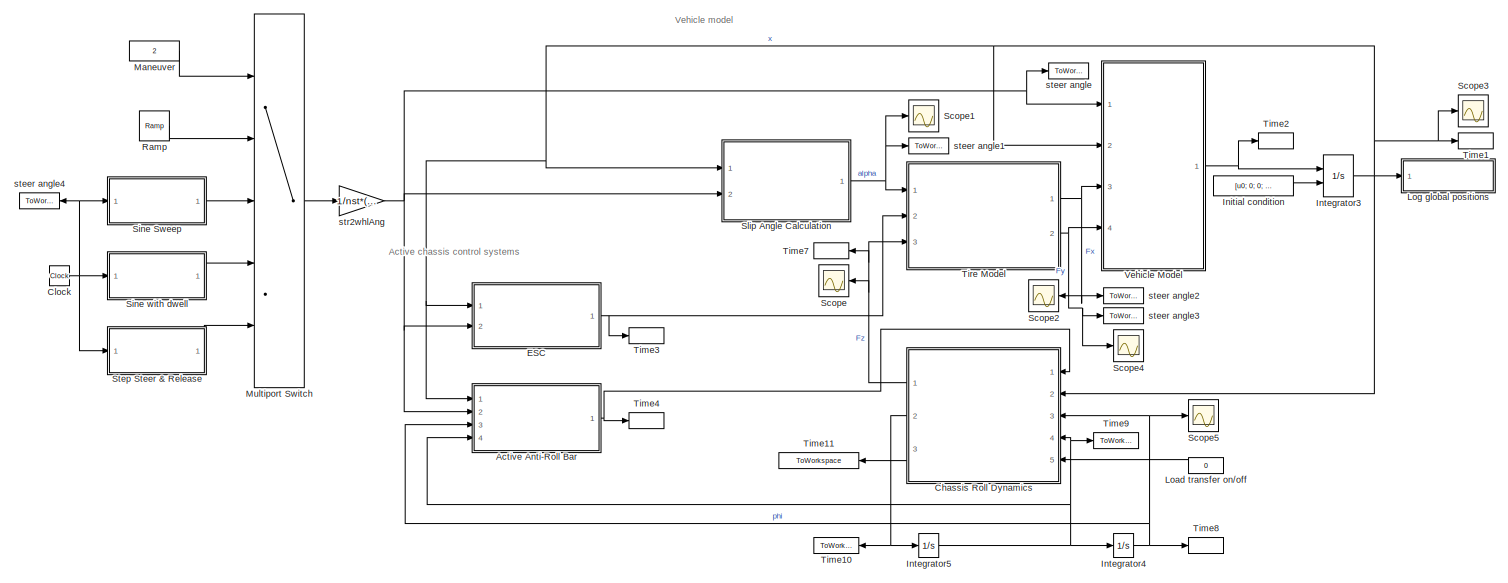
[diagram: root canvas - part 1/2, full width, middle band]
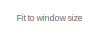
[diagram: root canvas - part 2/2, bottom right region]
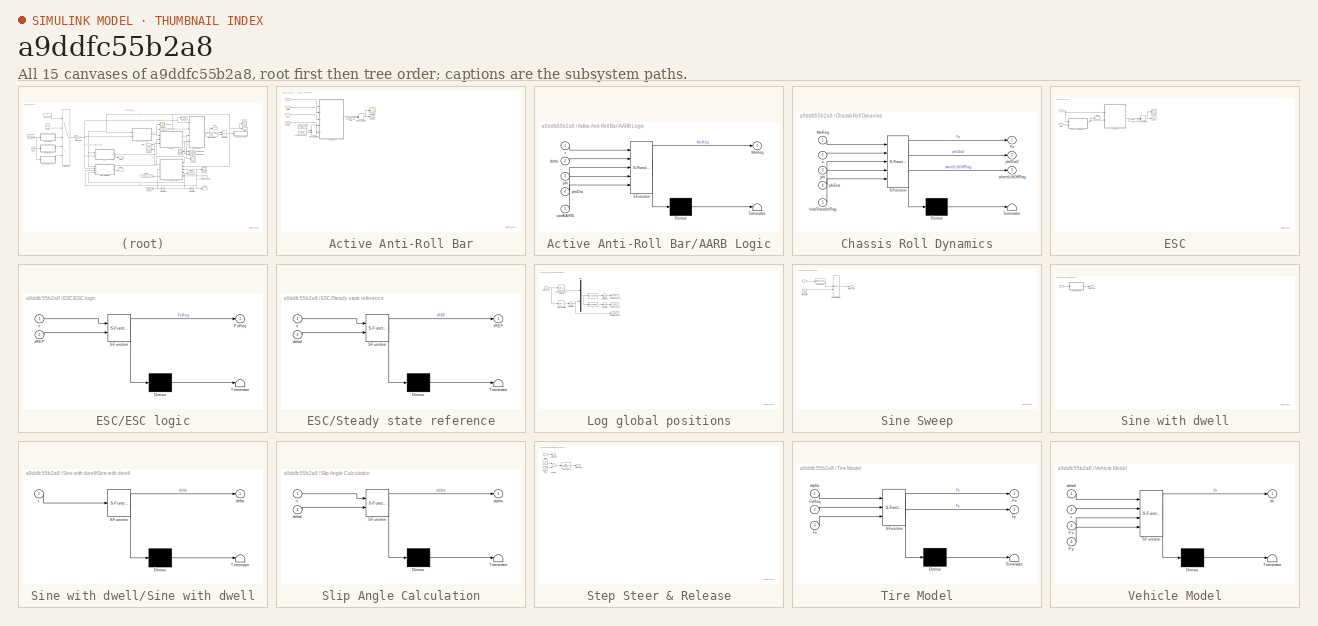
[diagram: thumbnail index - all 15 canvases of the model, root first then tree order]
MODEL slx_a9ddfc55b2a8
KIND model
CONFIG AbsTol = auto
CONFIG EnableMultiTasking = on
CONFIG FixedStep = sampleTime
CONFIG InitFcn = cd(fileparts(which(gcs)))\nrun ./initModel.m
CONFIG MaxStep = auto
CONFIG MinStep = auto
CONFIG RelTol = 1e-3
CONFIG SampleTimeConstraint = Unconstrained
CONFIG Solver = ode4
CONFIG SolverName = ode4
CONFIG StartTime = 0.0
CONFIG StopFcn = run ./postFcn.m;
CONFIG StopTime = simTime
BLOCK [SubSystem] Active Anti-Roll Bar
  Ports = [4, 1]
  RequestExecContextInheritance = off
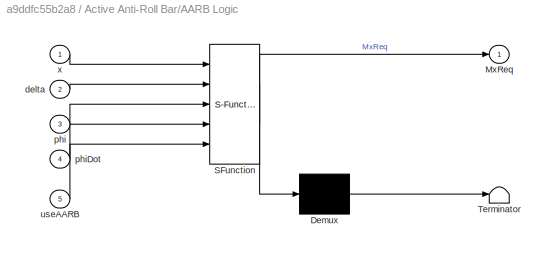
BLOCK [SubSystem] Active Anti-Roll Bar/AARB Logic
  ErrorFcn = Stateflow.Translate.translate
  PermitHierarchicalResolution = ExplicitOnly
  Ports = [5, 1]
  RequestExecContextInheritance = off
  SFBlockType = MATLAB Function
  TreatAsAtomicUnit = on
BLOCK [Demux] Active Anti-Roll Bar/AARB Logic/ Demux 
  Outputs = 1
  Ports = [1, 1]
BLOCK [S-Function] Active Anti-Roll Bar/AARB Logic/ SFunction 
  EnableBusSupport = on
  FunctionName = sf_sfun
  Parameters = L,cLambda,cPhi,h,h1,h2,kLambda,kPhi,l1,l2,m
  PortCounts = [5 2]
  Ports = [5, 2]
  SFcnIsStateOwnerBlock = off
  SFunctionDeploymentMode = off
  Tag = Stateflow S-Function latestfile 4
BLOCK [Terminator] Active Anti-Roll Bar/AARB Logic/ Terminator 
BLOCK [Outport] Active Anti-Roll Bar/AARB Logic/MxReq
  IconDisplay = Port number
BLOCK [Inport] Active Anti-Roll Bar/AARB Logic/delta
  IconDisplay = Port number
  Port = 2
BLOCK [Inport] Active Anti-Roll Bar/AARB Logic/phi
  IconDisplay = Port number
  Port = 3
BLOCK [Inport] Active Anti-Roll Bar/AARB Logic/phiDot
  IconDisplay = Port number
  Port = 4
BLOCK [Inport] Active Anti-Roll Bar/AARB Logic/useAARB
  IconDisplay = Port number
  Port = 5
BLOCK [Inport] Active Anti-Roll Bar/AARB Logic/x
  IconDisplay = Port number
BLOCK [Constant] Active Anti-Roll Bar/AARB control OFF
  Value = false
BLOCK [Constant] Active Anti-Roll Bar/AARB control ON
  Value = true
BLOCK [ManualSwitch] Active Anti-Roll Bar/Manual Switch1
  CurrentSetting = 0
BLOCK [ManualSwitch] Active Anti-Roll Bar/Manual Switch2
  CurrentSetting = 0
BLOCK [Constant] Active Anti-Roll Bar/Mx
  Value = [0;0;]
BLOCK [Outport] Active Anti-Roll Bar/MxReq
  IconDisplay = Port number
BLOCK [Scope] Active Anti-Roll Bar/Scope1
  Floating = off
  NumInputPorts = 1
  Ports = [1]
  ScopeSpecificationString = Simulink.scopes.TimeScopeBlockCfg('CurrentConfiguration', extmgr.ConfigurationSet(extmgr.Configuration('Core','General UI',true,'FigureColor',[0.5 0.5 0.5]),extmgr.Configuration('Core','Source UI',true),extmgr.Configuration('Sources','WiredSimulink',true,'DataLoggingVariableName','ScopeData4','DataLoggingSaveFormat','StructureWithTime','DataLoggingLimitDataPoints',true,'DataLoggingDecimation','1',...<+2762ch>
BLOCK [Inport] Active Anti-Roll Bar/delta
  IconDisplay = Port number
  Port = 2
BLOCK [Inport] Active Anti-Roll Bar/phi
  IconDisplay = Port number
  Port = 3
BLOCK [Inport] Active Anti-Roll Bar/phiDot
  IconDisplay = Port number
  Port = 4
BLOCK [Inport] Active Anti-Roll Bar/x
  IconDisplay = Port number
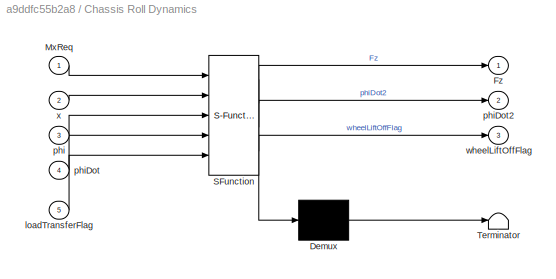
BLOCK [SubSystem] Chassis Roll Dynamics
  ErrorFcn = Stateflow.Translate.translate
  PermitHierarchicalResolution = ExplicitOnly
  Ports = [5, 3]
  RequestExecContextInheritance = off
  SFBlockType = MATLAB Function
  TreatAsAtomicUnit = on
BLOCK [Demux] Chassis Roll Dynamics/ Demux 
  Outputs = 1
  Ports = [1, 1]
BLOCK [S-Function] Chassis Roll Dynamics/ SFunction 
  EnableBusSupport = on
  FunctionName = sf_sfun
  Parameters = Ixx,L,cLambda,cPhi,g,h,h0,h1,h2,kLambda,kPhi,l1,l2,m,ms,w
  PortCounts = [5 4]
  Ports = [5, 4]
  SFcnIsStateOwnerBlock = off
  SFunctionDeploymentMode = off
  Tag = Stateflow S-Function latestfile 2
BLOCK [Terminator] Chassis Roll Dynamics/ Terminator 
BLOCK [Outport] Chassis Roll Dynamics/Fz
  IconDisplay = Port number
BLOCK [Inport] Chassis Roll Dynamics/MxReq
  IconDisplay = Port number
BLOCK [Inport] Chassis Roll Dynamics/loadTransferFlag
  IconDisplay = Port number
  Port = 5
BLOCK [Inport] Chassis Roll Dynamics/phi
  IconDisplay = Port number
  Port = 3
BLOCK [Inport] Chassis Roll Dynamics/phiDot
  IconDisplay = Port number
  Port = 4
BLOCK [Outport] Chassis Roll Dynamics/phiDot2
  IconDisplay = Port number
  Port = 2
BLOCK [Outport] Chassis Roll Dynamics/wheelLiftOffFlag
  IconDisplay = Port number
  Port = 3
BLOCK [Inport] Chassis Roll Dynamics/x
  IconDisplay = Port number
  Port = 2
BLOCK [Clock] Clock
BLOCK [SubSystem] ESC
  Ports = [2, 1]
  RequestExecContextInheritance = off
BLOCK [SubSystem] ESC/ESC logic
  ErrorFcn = Stateflow.Translate.translate
  PermitHierarchicalResolution = ExplicitOnly
  Ports = [2, 1]
  RequestExecContextInheritance = off
  SFBlockType = MATLAB Function
  TreatAsAtomicUnit = on
BLOCK [Demux] ESC/ESC logic/ Demux 
  Outputs = 1
  Ports = [1, 1]
BLOCK [S-Function] ESC/ESC logic/ SFunction 
  EnableBusSupport = on
  FunctionName = sf_sfun
  Parameters = escK,rErrLim,uESCLim
  PortCounts = [2 2]
  Ports = [2, 2]
  SFcnIsStateOwnerBlock = off
  SFunctionDeploymentMode = off
  Tag = Stateflow S-Function latestfile 13
BLOCK [Terminator] ESC/ESC logic/ Terminator 
BLOCK [Outport] ESC/ESC logic/FxReq
  IconDisplay = Port number
BLOCK [Inport] ESC/ESC logic/rREF
  IconDisplay = Port number
  Port = 2
BLOCK [Inport] ESC/ESC logic/x
  IconDisplay = Port number
BLOCK [Constant] ESC/Fx
  Value = [0; 0; 0; 0;]
BLOCK [Outport] ESC/FxReq
  IconDisplay = Port number
BLOCK [ManualSwitch] ESC/Manual Switch1
  CurrentSetting = 0
BLOCK [Scope] ESC/Scope1
  Floating = off
  NumInputPorts = 1
  Ports = [1]
  ScopeSpecificationString = Simulink.scopes.TimeScopeBlockCfg('CurrentConfiguration', extmgr.ConfigurationSet(extmgr.Configuration('Core','General UI',true,'FigureColor',[0.5 0.5 0.5]),extmgr.Configuration('Core','Source UI',true),extmgr.Configuration('Sources','WiredSimulink',true,'DataLoggingVariableName','ScopeData6','DataLoggingSaveFormat','StructureWithTime','DataLoggingLimitDataPoints',true,'DataLoggingDecimation','1',...<+2800ch>
BLOCK [SubSystem] ESC/Steady state reference
  ErrorFcn = Stateflow.Translate.translate
  PermitHierarchicalResolution = ExplicitOnly
  Ports = [2, 1]
  RequestExecContextInheritance = off
  SFBlockType = MATLAB Function
  TreatAsAtomicUnit = on
BLOCK [Demux] ESC/Steady state reference/ Demux 
  Outputs = 1
  Ports = [1, 1]
BLOCK [S-Function] ESC/Steady state reference/ SFunction 
  EnableBusSupport = on
  FunctionName = sf_sfun
  Parameters = C,E,Fz0,L,c0,c1,g,l1,l2,m,mu0,mu1
  PortCounts = [2 2]
  Ports = [2, 2]
  SFcnIsStateOwnerBlock = off
  SFunctionDeploymentMode = off
  Tag = Stateflow S-Function latestfile 15
BLOCK [Terminator] ESC/Steady state reference/ Terminator 
BLOCK [Inport] ESC/Steady state reference/deltaf
  IconDisplay = Port number
  Port = 2
BLOCK [Outport] ESC/Steady state reference/rREF
  IconDisplay = Port number
BLOCK [Inport] ESC/Steady state reference/x
  IconDisplay = Port number
BLOCK [ToWorkspace] ESC/Time6
  MaxDataPoints = inf
  Ports = [1]
  SampleTime = sampleTime
  Save2DSignal = 3-D array (concatenate along third dimension)
  VariableName = psiRef
BLOCK [Inport] ESC/deltaf
  IconDisplay = Port number
  Port = 2
BLOCK [Inport] ESC/x
  IconDisplay = Port number
BLOCK [Constant] Initial condition 
  Value = [u0; 0; 0; 0; 0; 0]
BLOCK [Integrator] Integrator3
  InitialConditionSource = external
  Ports = [2, 1]
BLOCK [Integrator] Integrator4
  Ports = [1, 1]
BLOCK [Integrator] Integrator5
  Ports = [1, 1]
BLOCK [Constant] Load transfer on//off
  Value = 0
BLOCK [SubSystem] Log global positions
  Ports = [1]
  RequestExecContextInheritance = off
BLOCK [Integrator] Log global positions/Integrator1
  Ports = [1, 1]
BLOCK [Integrator] Log global positions/Integrator2
  Ports = [1, 1]
BLOCK [Integrator] Log global positions/Integrator5
  Ports = [1, 1]
BLOCK [Mux] Log global positions/Mux
  DisplayOption = bar
  Inputs = 2
  Ports = [2, 1]
BLOCK [Selector] Log global positions/Select lat. and long. velocity
  IndexOptions = Index vector (dialog)
  Indices = [1 2]
  InputPortWidth = 6
  OutputSizes = 1
  Ports = [1, 1]
BLOCK [Selector] Log global positions/Select yaw rate
  IndexOptions = Index vector (dialog)
  Indices = 3
  InputPortWidth = 6
  OutputSizes = 1
  Ports = [1, 1]
BLOCK [ToWorkspace] Log global positions/To Workspace1
  MaxDataPoints = inf
  Ports = [1]
  SampleTime = sampleTime
  Save2DSignal = 3-D array (concatenate along third dimension)
  VariableName = psi
BLOCK [ToWorkspace] Log global positions/To Workspace8
  MaxDataPoints = inf
  Ports = [1]
  SampleTime = sampleTime
  Save2DSignal = 3-D array (concatenate along third dimension)
  VariableName = X
BLOCK [ToWorkspace] Log global positions/To Workspace9
  MaxDataPoints = inf
  Ports = [1]
  SampleTime = sampleTime
  Save2DSignal = 3-D array (concatenate along third dimension)
  VariableName = Y
BLOCK [Fcn] Log global positions/X
  Expr = u(1)*cos(u(3)) - u(2)*sin(u(3))
BLOCK [Fcn] Log global positions/Y
  Expr = u(2)*cos(u(3)) + u(1)*sin(u(3))
BLOCK [Inport] Log global positions/stateVector
  IconDisplay = Port number
BLOCK [Constant] Maneuver
  Value = 2
BLOCK [MultiPortSwitch] Multiport Switch
  InputSameDT = off
  Inputs = 4
  Ports = [5, 1]
  SaturateOnIntegerOverflow = off
BLOCK [Reference] Ramp  REF=simulink/Sources/Ramp
  Ports = [0, 1]
  SourceBlock = simulink/Sources/Ramp
  SourceProductBaseCode = SL
  SourceProductName = Simulink
  SourceType = Ramp
BLOCK [Scope] Scope
  Floating = off
  NumInputPorts = 1
  Ports = [1]
  ScopeSpecificationString = Simulink.scopes.TimeScopeBlockCfg('CurrentConfiguration', extmgr.ConfigurationSet(extmgr.Configuration('Core','General UI',true,'FigureColor',[0.501960784313725 0.501960784313725 0.501960784313725]),extmgr.Configuration('Core','Source UI',true),extmgr.Configuration('Sources','WiredSimulink',true,'DataLoggingSaveFormat','StructureWithTime','DataLoggingDecimation','1','DataLoggingDecimateData',true)...<+2654ch>
BLOCK [Scope] Scope1
  Floating = off
  NumInputPorts = 1
  Ports = [1]
  ScopeSpecificationString = Simulink.scopes.TimeScopeBlockCfg('CurrentConfiguration', extmgr.ConfigurationSet(extmgr.Configuration('Core','General UI',true,'FigureColor',[0.501960784313725 0.501960784313725 0.501960784313725]),extmgr.Configuration('Core','Source UI',true),extmgr.Configuration('Sources','WiredSimulink',true,'DataLoggingSaveFormat','StructureWithTime','DataLoggingDecimation','1','DataLoggingDecimateData',true,...<+2673ch>
BLOCK [Scope] Scope2
  Floating = off
  NumInputPorts = 1
  Ports = [1]
  ScopeSpecificationString = Simulink.scopes.TimeScopeBlockCfg('CurrentConfiguration', extmgr.ConfigurationSet(extmgr.Configuration('Core','General UI',true,'FigureColor',[0.501960784313725 0.501960784313725 0.501960784313725]),extmgr.Configuration('Core','Source UI',true),extmgr.Configuration('Sources','WiredSimulink',true,'DataLoggingSaveFormat','StructureWithTime','DataLoggingDecimation','1','DataLoggingDecimateData',true,...<+2692ch>
BLOCK [Scope] Scope3
  Floating = off
  NumInputPorts = 1
  Ports = [1]
  ScopeSpecificationString = Simulink.scopes.TimeScopeBlockCfg('CurrentConfiguration', extmgr.ConfigurationSet(extmgr.Configuration('Core','General UI',true,'FigureColor',[0.501960784313725 0.501960784313725 0.501960784313725]),extmgr.Configuration('Core','Source UI',true),extmgr.Configuration('Sources','WiredSimulink',true,'DataLoggingSaveFormat','StructureWithTime','DataLoggingDecimation','1','DataLoggingDecimateData',true,...<+2678ch>
BLOCK [Scope] Scope4
  Floating = off
  NumInputPorts = 1
  Ports = [1]
  ScopeSpecificationString = Simulink.scopes.TimeScopeBlockCfg('CurrentConfiguration', extmgr.ConfigurationSet(extmgr.Configuration('Core','General UI',true,'FigureColor',[0.501960784313725 0.501960784313725 0.501960784313725]),extmgr.Configuration('Core','Source UI',true),extmgr.Configuration('Sources','WiredSimulink',true,'DataLoggingSaveFormat','StructureWithTime','DataLoggingDecimation','1','DataLoggingDecimateData',true,...<+2687ch>
BLOCK [Scope] Scope5
  Floating = off
  NumInputPorts = 1
  Ports = [1]
  ScopeSpecificationString = Simulink.scopes.TimeScopeBlockCfg('CurrentConfiguration', extmgr.ConfigurationSet(extmgr.Configuration('Core','General UI',true,'FigureColor',[0.501960784313725 0.501960784313725 0.501960784313725]),extmgr.Configuration('Core','Source UI',true),extmgr.Configuration('Sources','WiredSimulink',true,'DataLoggingSaveFormat','StructureWithTime','DataLoggingDecimation','1','DataLoggingDecimateData',true,...<+2672ch>
BLOCK [SubSystem] Sine Sweep
  Ports = [1, 1]
  RequestExecContextInheritance = off
BLOCK [ManualSwitch] Sine Sweep/Manual Switch1
  CurrentSetting = 0
BLOCK [Sin] Sine Sweep/Sine Wave
  Amplitude = strAmpSS
  Frequency = strMaxFreq*2*pi
  Ports = [0, 1]
  SampleTime = 0
BLOCK [Fcn] Sine Sweep/Sine sweep
  Expr = strAmpSS*sin(pi*(strMaxFreq*100*u/simTime)*u)
BLOCK [Outport] Sine Sweep/strWhlAngle
  IconDisplay = Port number
BLOCK [Inport] Sine Sweep/t
  IconDisplay = Port number
BLOCK [SubSystem] Sine with dwell
  Ports = [1, 1]
  RequestExecContextInheritance = off
BLOCK [SubSystem] Sine with dwell/Sine with dwell
  ErrorFcn = Stateflow.Translate.translate
  PermitHierarchicalResolution = ExplicitOnly
  Ports = [1, 1]
  RequestExecContextInheritance = off
  SFBlockType = MATLAB Function
  TreatAsAtomicUnit = on
BLOCK [Demux] Sine with dwell/Sine with dwell/ Demux 
  Outputs = 1
  Ports = [1, 1]
BLOCK [S-Function] Sine with dwell/Sine with dwell/ SFunction 
  EnableBusSupport = on
  FunctionName = sf_sfun
  Parameters = dwell,strAmpSWD,strFreq,tStart
  PortCounts = [1 2]
  Ports = [1, 2]
  SFcnIsStateOwnerBlock = off
  SFunctionDeploymentMode = off
  Tag = Stateflow S-Function latestfile 7
BLOCK [Terminator] Sine with dwell/Sine with dwell/ Terminator 
BLOCK [Outport] Sine with dwell/Sine with dwell/delta
  IconDisplay = Port number
BLOCK [Inport] Sine with dwell/Sine with dwell/t
  IconDisplay = Port number
BLOCK [Outport] Sine with dwell/strWhlAngle
  IconDisplay = Port number
BLOCK [Inport] Sine with dwell/t
  IconDisplay = Port number
BLOCK [SubSystem] Slip Angle Calculation
  ErrorFcn = Stateflow.Translate.translate
  PermitHierarchicalResolution = ExplicitOnly
  Ports = [2, 1]
  RequestExecContextInheritance = off
  SFBlockType = MATLAB Function
  TreatAsAtomicUnit = on
BLOCK [Demux] Slip Angle Calculation/ Demux 
  Outputs = 1
  Ports = [1, 1]
BLOCK [S-Function] Slip Angle Calculation/ SFunction 
  EnableBusSupport = on
  FunctionName = sf_sfun
  Parameters = l1,l2,w
  PortCounts = [2 2]
  Ports = [2, 2]
  SFcnIsStateOwnerBlock = off
  SFunctionDeploymentMode = off
  Tag = Stateflow S-Function latestfile 3
BLOCK [Terminator] Slip Angle Calculation/ Terminator 
BLOCK [Outport] Slip Angle Calculation/alpha
  IconDisplay = Port number
BLOCK [Inport] Slip Angle Calculation/deltaf
  IconDisplay = Port number
  Port = 2
BLOCK [Inport] Slip Angle Calculation/x
  IconDisplay = Port number
BLOCK [SubSystem] Step Steer & Release
  Ports = [1, 1]
  RequestExecContextInheritance = off
BLOCK [Step] Step Steer & Release/Step
  After = strAmpSS
  SampleTime = 0
BLOCK [Step] Step Steer & Release/Step1
  After = strAmpSS
  SampleTime = 0
  Time = 6
BLOCK [Sum] Step Steer & Release/Subtract
  InputSameDT = off
  Inputs = +-
  OutDataTypeStr = Inherit: Inherit via internal rule
  Ports = [2, 1]
  SaturateOnIntegerOverflow = off
BLOCK [Terminator] Step Steer & Release/Terminator
BLOCK [TransferFcn] Step Steer & Release/Transfer Fcn
  Denominator = [4e-3 1]
BLOCK [Outport] Step Steer & Release/strWhlAngle
  IconDisplay = Port number
BLOCK [Inport] Step Steer & Release/t
  IconDisplay = Port number
BLOCK [ToWorkspace] Time1
  MaxDataPoints = inf
  Ports = [1]
  SampleTime = sampleTime
  Save2DSignal = 3-D array (concatenate along third dimension)
  VariableName = x
BLOCK [ToWorkspace] Time10
  MaxDataPoints = inf
  Ports = [1]
  SampleTime = sampleTime
  Save2DSignal = 3-D array (concatenate along third dimension)
  VariableName = phiDot2
BLOCK [ToWorkspace] Time11
  MaxDataPoints = inf
  Ports = [1]
  SampleTime = sampleTime
  Save2DSignal = 3-D array (concatenate along third dimension)
  VariableName = wheelLiftOffFlag
BLOCK [ToWorkspace] Time2
  MaxDataPoints = inf
  Ports = [1]
  SampleTime = sampleTime
  Save2DSignal = 3-D array (concatenate along third dimension)
  VariableName = dx
BLOCK [ToWorkspace] Time3
  MaxDataPoints = inf
  Ports = [1]
  SampleTime = sampleTime
  Save2DSignal = 3-D array (concatenate along third dimension)
  VariableName = FxReq
BLOCK [ToWorkspace] Time4
  MaxDataPoints = inf
  Ports = [1]
  SampleTime = sampleTime
  Save2DSignal = 3-D array (concatenate along third dimension)
  VariableName = MxReq
BLOCK [ToWorkspace] Time7
  MaxDataPoints = inf
  Ports = [1]
  SampleTime = sampleTime
  Save2DSignal = 3-D array (concatenate along third dimension)
  VariableName = Fz
BLOCK [ToWorkspace] Time8
  MaxDataPoints = inf
  Ports = [1]
  SampleTime = sampleTime
  Save2DSignal = 3-D array (concatenate along third dimension)
  VariableName = phi
BLOCK [ToWorkspace] Time9
  MaxDataPoints = inf
  Ports = [1]
  SampleTime = sampleTime
  Save2DSignal = 3-D array (concatenate along third dimension)
  VariableName = phiDot
BLOCK [SubSystem] Tire Model
  ErrorFcn = Stateflow.Translate.translate
  PermitHierarchicalResolution = ExplicitOnly
  Ports = [3, 2]
  RequestExecContextInheritance = off
  SFBlockType = MATLAB Function
  TreatAsAtomicUnit = on
BLOCK [Demux] Tire Model/ Demux 
  Outputs = 1
  Ports = [1, 1]
BLOCK [S-Function] Tire Model/ SFunction 
  EnableBusSupport = on
  FunctionName = sf_sfun
  Parameters = C,E,Fz0,c0,c1,mu0,mu1
  PortCounts = [3 3]
  Ports = [3, 3]
  SFcnIsStateOwnerBlock = off
  SFunctionDeploymentMode = off
  Tag = Stateflow S-Function latestfile 14
BLOCK [Terminator] Tire Model/ Terminator 
BLOCK [Outport] Tire Model/Fx
  IconDisplay = Port number
BLOCK [Inport] Tire Model/FxReq
  IconDisplay = Port number
  Port = 2
BLOCK [Outport] Tire Model/Fy
  IconDisplay = Port number
  Port = 2
BLOCK [Inport] Tire Model/Fz
  IconDisplay = Port number
  Port = 3
BLOCK [Inport] Tire Model/alpha
  IconDisplay = Port number
BLOCK [SubSystem] Vehicle Model
  ErrorFcn = Stateflow.Translate.translate
  PermitHierarchicalResolution = ExplicitOnly
  Ports = [4, 1]
  RequestExecContextInheritance = off
  SFBlockType = MATLAB Function
  TreatAsAtomicUnit = on
BLOCK [Demux] Vehicle Model/ Demux 
  Outputs = 1
  Ports = [1, 1]
BLOCK [S-Function] Vehicle Model/ SFunction 
  EnableBusSupport = on
  FunctionName = sf_sfun
  Parameters = Izz,l1,l2,m,sampleTime,w
  PortCounts = [4 2]
  Ports = [4, 2]
  SFcnIsStateOwnerBlock = off
  SFunctionDeploymentMode = off
  Tag = Stateflow S-Function latestfile 1
BLOCK [Terminator] Vehicle Model/ Terminator 
BLOCK [Inport] Vehicle Model/Fx
  IconDisplay = Port number
  Port = 3
BLOCK [Inport] Vehicle Model/Fy
  IconDisplay = Port number
  Port = 4
BLOCK [Inport] Vehicle Model/deltaf
  IconDisplay = Port number
BLOCK [Outport] Vehicle Model/dx
  IconDisplay = Port number
BLOCK [Inport] Vehicle Model/x
  IconDisplay = Port number
  Port = 2
BLOCK [ToWorkspace] steer angle
  MaxDataPoints = inf
  Ports = [1]
  SampleTime = sampleTime
  Save2DSignal = 3-D array (concatenate along third dimension)
  VariableName = deltaf
BLOCK [ToWorkspace] steer angle1
  MaxDataPoints = inf
  Ports = [1]
  SampleTime = sampleTime
  Save2DSignal = 3-D array (concatenate along third dimension)
  VariableName = alpha
BLOCK [ToWorkspace] steer angle2
  MaxDataPoints = inf
  Ports = [1]
  SampleTime = sampleTime
  Save2DSignal = 3-D array (concatenate along third dimension)
  VariableName = Fx
BLOCK [ToWorkspace] steer angle3
  MaxDataPoints = inf
  Ports = [1]
  SampleTime = sampleTime
  Save2DSignal = 3-D array (concatenate along third dimension)
  VariableName = Fy
BLOCK [ToWorkspace] steer angle4
  MaxDataPoints = inf
  Ports = [1]
  SampleTime = sampleTime
  Save2DSignal = 3-D array (concatenate along third dimension)
  VariableName = t
BLOCK [Gain] str2whlAng
  Gain = 1/nst*(pi/180)
  OutDataTypeStr = Inherit: Inherit via internal rule
  ParamDataTypeStr = Inherit: Inherit via internal rule
  SaturateOnIntegerOverflow = off
ANNOTATION (root): Active chassis control systems
ANNOTATION (root): Fit to window size
ANNOTATION (root): Vehicle model
ANNOTATION Active Anti-Roll Bar: Fit to window size
ANNOTATION ESC: Fit to window size
ANNOTATION Log global positions: Fit to window size
ANNOTATION Sine Sweep: Fit to window size
ANNOTATION Sine with dwell: Fit to window size
ANNOTATION Step Steer & Release: Fit to window size
LINE Active Anti-Roll Bar/AARB Logic:1 -> Active Anti-Roll Bar/Manual Switch1:1
LINE Active Anti-Roll Bar/AARB control OFF:1 -> Active Anti-Roll Bar/Manual Switch2:2
LINE Active Anti-Roll Bar/AARB control ON:1 -> Active Anti-Roll Bar/Manual Switch2:1
NET Active Anti-Roll Bar/Manual Switch1:1 -> Active Anti-Roll Bar/MxReq:1, Active Anti-Roll Bar/Scope1:1
LINE Active Anti-Roll Bar/Manual Switch2:1 -> Active Anti-Roll Bar/AARB Logic:5
LINE Active Anti-Roll Bar/Mx:1 -> Active Anti-Roll Bar/Manual Switch1:2
LINE Active Anti-Roll Bar/delta:1 -> Active Anti-Roll Bar/AARB Logic:2
LINE Active Anti-Roll Bar/phi:1 -> Active Anti-Roll Bar/AARB Logic:3
LINE Active Anti-Roll Bar/phiDot:1 -> Active Anti-Roll Bar/AARB Logic:4
LINE Active Anti-Roll Bar/x:1 -> Active Anti-Roll Bar/AARB Logic:1
NET Active Anti-Roll Bar:1 -> Chassis Roll Dynamics:1, Time4:1
NET Chassis Roll Dynamics:1 -> Scope:1, Time7:1, Tire Model:3
NET Chassis Roll Dynamics:2 -> Integrator5:1, Time10:1
LINE Chassis Roll Dynamics:3 -> Time11:1
NET Clock:1 -> Sine Sweep:1, Sine with dwell:1, Step Steer & Release:1, steer angle4:1
LINE ESC/ESC logic:1 -> ESC/Manual Switch1:1
LINE ESC/Fx:1 -> ESC/Manual Switch1:2
NET ESC/Manual Switch1:1 -> ESC/FxReq:1, ESC/Scope1:1
NET ESC/Steady state reference:1 -> ESC/ESC logic:2, ESC/Time6:1
LINE ESC/deltaf:1 -> ESC/Steady state reference:2
NET ESC/x:1 -> ESC/ESC logic:1, ESC/Steady state reference:1
NET ESC:1 -> Time3:1, Tire Model:2
LINE Initial condition :1 -> Integrator3:2
NET Integrator3:1 -> Active Anti-Roll Bar:1, Chassis Roll Dynamics:2, ESC:1, Log global positions:1, Scope3:1, Slip Angle Calculation:1, Time1:1, Vehicle Model:2
NET Integrator4:1 -> Active Anti-Roll Bar:3, Chassis Roll Dynamics:3, Scope5:1, Time8:1
NET Integrator5:1 -> Active Anti-Roll Bar:4, Chassis Roll Dynamics:4, Integrator4:1, Time9:1
LINE Load transfer on//off:1 -> Chassis Roll Dynamics:5
LINE Log global positions/Integrator1:1 -> Log global positions/To Workspace9:1
NET Log global positions/Integrator2:1 -> Log global positions/Mux:2, Log global positions/To Workspace1:1
LINE Log global positions/Integrator5:1 -> Log global positions/To Workspace8:1
NET Log global positions/Mux:1 -> Log global positions/X:1, Log global positions/Y:1
LINE Log global positions/Select lat. and long. velocity:1 -> Log global positions/Mux:1
LINE Log global positions/Select yaw rate:1 -> Log global positions/Integrator2:1
LINE Log global positions/X:1 -> Log global positions/Integrator5:1
LINE Log global positions/Y:1 -> Log global positions/Integrator1:1
NET Log global positions/stateVector:1 -> Log global positions/Select lat. and long. velocity:1, Log global positions/Select yaw rate:1
LINE Maneuver:1 -> Multiport Switch:1
LINE Multiport Switch:1 -> str2whlAng:1
LINE Ramp:1 -> Multiport Switch:2
LINE Sine Sweep/Manual Switch1:1 -> Sine Sweep/strWhlAngle:1
LINE Sine Sweep/Sine Wave:1 -> Sine Sweep/Manual Switch1:2
LINE Sine Sweep/Sine sweep:1 -> Sine Sweep/Manual Switch1:1
LINE Sine Sweep/t:1 -> Sine Sweep/Sine sweep:1
LINE Sine Sweep:1 -> Multiport Switch:3
LINE Sine with dwell/Sine with dwell:1 -> Sine with dwell/strWhlAngle:1
LINE Sine with dwell/t:1 -> Sine with dwell/Sine with dwell:1
LINE Sine with dwell:1 -> Multiport Switch:4
NET Slip Angle Calculation:1 -> Scope1:1, Tire Model:1, steer angle1:1
LINE Step Steer & Release/Step1:1 -> Step Steer & Release/Subtract:2
LINE Step Steer & Release/Step:1 -> Step Steer & Release/Subtract:1
LINE Step Steer & Release/Subtract:1 -> Step Steer & Release/Transfer Fcn:1
LINE Step Steer & Release/Transfer Fcn:1 -> Step Steer & Release/strWhlAngle:1
LINE Step Steer & Release/t:1 -> Step Steer & Release/Terminator:1
LINE Step Steer & Release:1 -> Multiport Switch:5
NET Tire Model:1 -> Scope2:1, Vehicle Model:3, steer angle2:1
NET Tire Model:2 -> Scope4:1, Vehicle Model:4, steer angle3:1
NET Vehicle Model:1 -> Integrator3:1, Time2:1
NET str2whlAng:1 -> Active Anti-Roll Bar:2, ESC:2, Slip Angle Calculation:2, Vehicle Model:1, steer angle:1
note: NET lines group one-source signal fan-out (src -> all destinations, sorted); 1:1 wires keep LINE
CHART Vehicle Model states=1 transitions=1
  STATE_LABEL 'eML_blk_kernel()'
  STATE_LABEL 'SCRIPT:\n%% --------------------------------------------------------------------- %%\nfunction dx = EqnsOfMotion(deltaf,x,Fx,Fy,m,Izz,l1,l2,w,sampleTime)\n    % Input: Vector of vehicle states (x), road wheel angle (deltaf),\n    % vector of lateral and longitudinal wheel forces (Fy and Fx), vehicle\n    % parameters\n    % Output: Derivative of vector of vehicle states (dx)\n    %%======================...<+1280ch>'
CHART Chassis Roll Dynamics states=1 transitions=1
  STATE_LABEL 'eML_blk_kernel()'
  STATE_LABEL 'SCRIPT:\n%% --------------------------------------------------------------------- %%\nfunction [Fz,phiDot2,wheelLiftOffFlag] = LoadTransfer(MxReq,x,phi,...\n    phiDot,m,ms,Ixx,l1,l2,L,w,h,h0,h1,h2,g,cPhi,cLambda,kPhi,kLambda,...\n    loadTransferFlag)\n    % Inputs: Vehicle states (x), roll angle and roll rate (phi, phiDot),\n    % vehicle parameters\n    % Outputs: Wheel normal loads (Fz), roll acceler...<+1787ch>'
CHART Slip Angle Calculation states=1 transitions=1
  STATE_LABEL 'eML_blk_kernel()'
  STATE_LABEL 'SCRIPT:\n%% --------------------------------------------------------------------- %%\nfunction alpha = SlipAngles(x,deltaf,l1,l2,w) \n    % Inputs: Vector of vehicle states (x), road wheel angle (deltaf) and\n    % vehicle parameters\n    % Output: alpha is the vector of slip angles of the 4 tyres\n    %%===================================================================%%\n    vx    = x(1);\n    vy    = ...<+375ch>'
CHART Active Anti-Roll Bar/AARB Logic states=1 transitions=1
  STATE_LABEL 'eML_blk_kernel()'
  STATE_LABEL 'SCRIPT:\n%% --------------------------------------------------------------------- %%\nfunction MxReq = AARB_Control(x,delta,phi,phiDot,useAARB,cPhi,kPhi,...\n    cLambda,kLambda,h, h1, h2, l1, l2, L,m)\n% Active anti roll bar torque request\nMxReq = [0; 0];\n\n%reference roll angle \ndeltaH = h-((l2*h1+l1*h2)/L);\ntarget_roll= (m*x(5)*deltaH)/cPhi ;\n\nK_gain = 12;\nif phi>0\n            ref_err = target_roll ...<+425ch>'
CHART Sine with dwell/Sine with dwell states=1 transitions=1
  STATE_LABEL 'eML_blk_kernel()'
  STATE_LABEL 'SCRIPT:\nfunction delta = SWD(t,tStart,strAmpSWD,dwell,strFreq)\n\nt0  = tStart;\nA   = strAmpSWD;\nf   = strFreq;\n\nT=1/f;\n\nif t > t0 && t <= t0 + 3*T/4\n    delta = A*sin(2*pi*f*(t - t0));\nelseif t > t0 + 3*T/4 && t <= t0 + 3*T/4 + dwell\n    delta = A*sin(2*pi*f*(3*T/4));\nelseif t > t0 + 3*T/4 + dwell && t <= t0 + T + dwell \n    delta = A*sin(2*pi*f*(t - (t0 + dwell)));\nelse\n    delta = 0;    \nend\n'
CHART ESC/ESC logic states=1 transitions=1
  STATE_LABEL 'eML_blk_kernel()'
  STATE_LABEL 'SCRIPT:\n%% --------------------------------------------------------------------- %%\nfunction FxReq = StabilityControl(x,rREF,escK,rErrLim,uESCLim)\nvx = x(1);\nr  = x(3);\n%-------------------------------- ESC --------------------------------%\n% Longitudinal force request\nFxReq = [0; 0; 0; 0;];\nmin_r = 0.01;\n\nif (vx>uESCLim)\n    if rREF > 0\n        if r < 0\n            r_err = rREF - r;\n            r...<+1787ch>'
CHART Tire Model states=1 transitions=1
  STATE_LABEL 'eML_blk_kernel()'
  STATE_LABEL 'SCRIPT:\n%% --------------------------------------------------------------------- %%\nfunction [Fx,Fy]= MagicTireEq(alpha,FxReq,Fz,C,E,mu0,mu1,c0,c1,Fz0)\n    % Input: Vector of slip angles (alpha), Fx request from the ESC\n    % controller (FxReq), normal load on the tyres (Fz)\n    % Output: Vector of lateral forces of the 4 tyres (Fy) and vector or\n    % longitudinal forces of the 4 tyres (Fx)\n    %...<+862ch>'
CHART ESC/Steady state reference states=1 transitions=1
  STATE_LABEL 'eML_blk_kernel()'
  STATE_LABEL 'SCRIPT:\n%% --------------------------------------------------------------------- %%\nfunction rREF = RefGen(x,deltaf,c0,c1,Fz0,m,l1,l2,L,g,mu0,mu1, C, E)\n%% cornering stiffness\n   g = 9.81;\nFz0_init = (m*g/(2*L))  *[l2; l2; l1; l1];\nmu_init      = mu0*(1-mu1*(Fz0_init-Fz0));\nc_init       = c0*(1-c1*(Fz0_init-Fz0));\nB_init       = c_init./(mu_init*C);\n\nFyMax_init  = mu_init.*Fz0_init;\n\nalpha0 = 0.00...<+528ch>'
